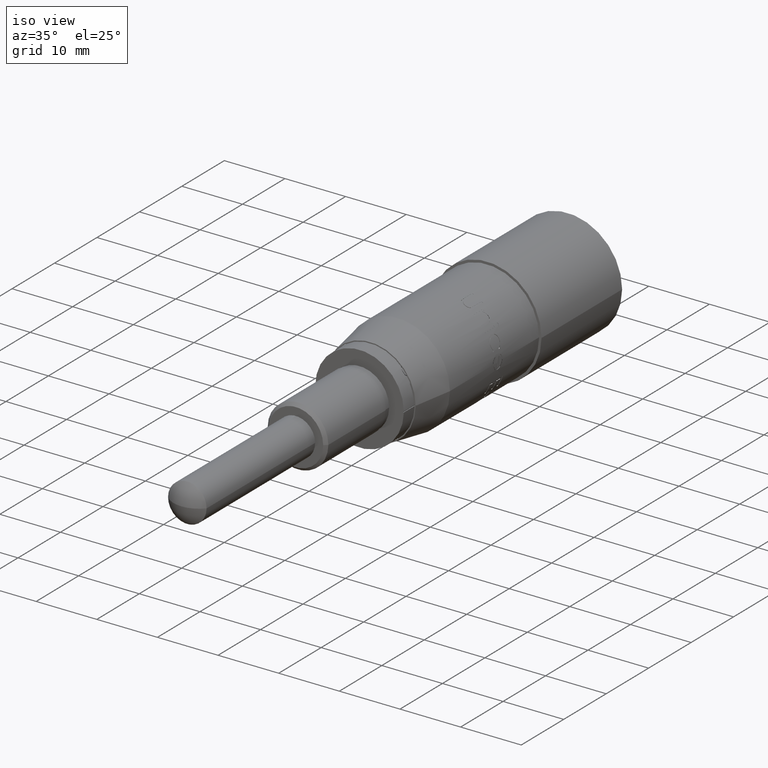
[diagram: clean part render]
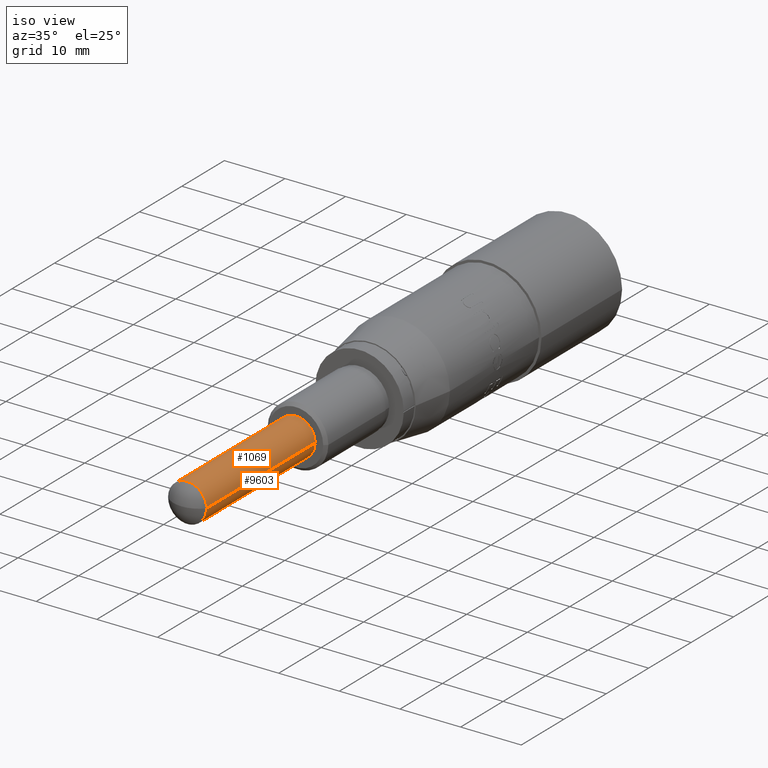
[diagram: same view with one multi-face feature highlighted, each face labeled with its STEP entity id]
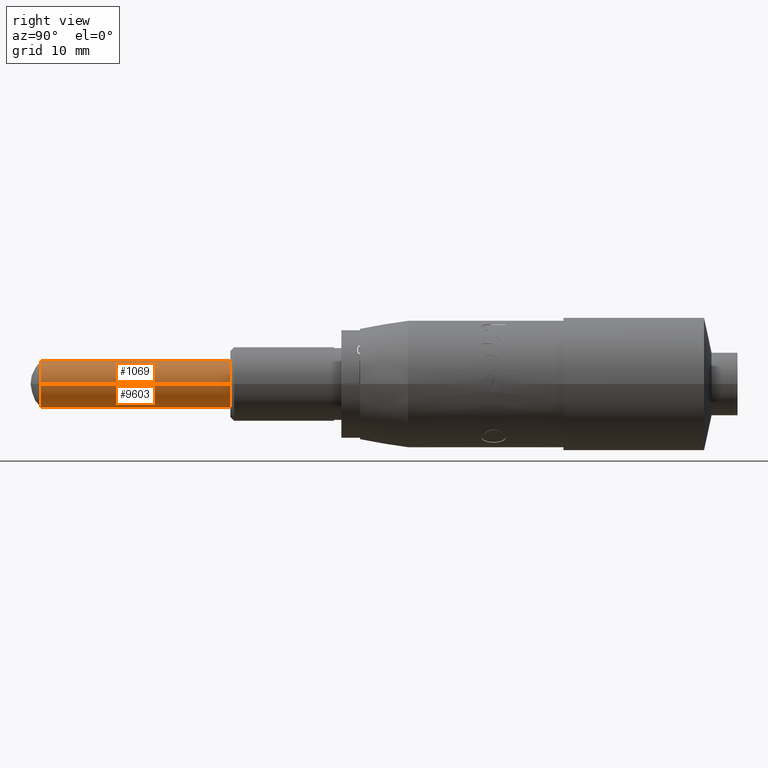
[diagram: same view with one multi-face feature highlighted, each face labeled with its STEP entity id]
A machine part, iso view. The highlighted faces form ONE feature: a constant-radius fillet chain: 2 tangent blend faces with common blend radius 3.175 mm. The faces share edges in the B-rep.
A second angle (right view) of the same feature is appended — it is thin or edge-on in the first view.
Their STEP definitions:
[1] entity #9603 (Cylinder):
#65 = CARTESIAN_POINT ( 'NONE',  ( 31.44783534030351600, 78.38825013362102800, 23.47757420670093300 ) ) ;
#127 = CARTESIAN_POINT ( 'NONE',  ( 34.62283534030351700, -20.74564867639476200, 23.47757420670093300 ) ) ;
#243 = DIRECTION ( 'NONE',  ( -8.879541407035451100E-017, 1.000000000000000000, -0.0000000000000000000 ) ) ;
#256 = ORIENTED_EDGE ( 'NONE', *, *, #8437, .T. ) ;
#1492 = VECTOR ( 'NONE', #243, 1000.000000000000000 ) ;
#1598 = ORIENTED_EDGE ( 'NONE', *, *, #3021, .F. ) ;
#1911 = VERTEX_POINT ( 'NONE', #10468 ) ;
#2626 = CARTESIAN_POINT ( 'NONE',  ( 28.27283534030351900, 78.38825013362102800, 23.47757420670093300 ) ) ;
#3007 = EDGE_CURVE ( 'NONE', #5429, #8070, #3200, .T. ) ;
#3021 = EDGE_CURVE ( 'NONE', #1911, #5429, #7364, .T. ) ;
#3023 = FACE_OUTER_BOUND ( 'NONE', #3051, .T. ) ;
#3051 = EDGE_LOOP ( 'NONE', ( #9254, #1598, #8279, #256 ) ) ;
#3200 = LINE ( 'NONE', #4410, #1492 ) ;
#3429 = DIRECTION ( 'NONE',  ( 1.058937486943297600E-016, -1.000000000000000000, 0.0000000000000000000 ) ) ;
#3499 = DIRECTION ( 'NONE',  ( -8.879541407035451100E-017, 1.000000000000000000, -0.0000000000000000000 ) ) ;
#3609 = DIRECTION ( 'NONE',  ( 8.879541407035449900E-017, -1.000000000000000000, -0.0000000000000000000 ) ) ;
#4403 = AXIS2_PLACEMENT_3D ( 'NONE', #8583, #3609, #9426 ) ;
#4410 = CARTESIAN_POINT ( 'NONE',  ( 34.62283534030351000, 78.38825013362102800, 23.47757420670093300 ) ) ;
#4846 = AXIS2_PLACEMENT_3D ( 'NONE', #8418, #3429, #9252 ) ;
#5007 = EDGE_CURVE ( 'NONE', #1911, #9976, #8011, .T. ) ;
#5429 = VERTEX_POINT ( 'NONE', #127 ) ;
#5495 = CARTESIAN_POINT ( 'NONE',  ( 34.62283534030350300, 52.32957255388083700, 23.47757420670093300 ) ) ;
#5787 = VECTOR ( 'NONE', #3499, 1000.000000000000000 ) ;
#6752 = CARTESIAN_POINT ( 'NONE',  ( 28.27283534030352300, 52.32957255388083700, 23.47757420670093300 ) ) ;
#7094 = CIRCLE ( 'NONE', #4846, 3.174999999999990500 ) ;
#7364 = CIRCLE ( 'NONE', #4403, 3.174999999999997200 ) ;
#8011 = LINE ( 'NONE', #2626, #5787 ) ;
#8070 = VERTEX_POINT ( 'NONE', #5495 ) ;
#8279 = ORIENTED_EDGE ( 'NONE', *, *, #5007, .T. ) ;
#8396 = CYLINDRICAL_SURFACE ( 'NONE', #9587, 3.174999999999997200 ) ;
#8418 = CARTESIAN_POINT ( 'NONE',  ( 31.44783534030351600, 52.32957255388083700, 23.47757420670093300 ) ) ;
#8437 = EDGE_CURVE ( 'NONE', #9976, #8070, #7094, .T. ) ;
#8583 = CARTESIAN_POINT ( 'NONE',  ( 31.44783534030352400, -20.74564867639476200, 23.47757420670093300 ) ) ;
#9247 = DIRECTION ( 'NONE',  ( -1.000000000000000000, 0.0000000000000000000, 0.0000000000000000000 ) ) ;
#9252 = DIRECTION ( 'NONE',  ( 1.000000000000000000, 0.0000000000000000000, 0.0000000000000000000 ) ) ;
#9254 = ORIENTED_EDGE ( 'NONE', *, *, #3007, .F. ) ;
#9426 = DIRECTION ( 'NONE',  ( 1.000000000000000000, 0.0000000000000000000, 0.0000000000000000000 ) ) ;
#9587 = AXIS2_PLACEMENT_3D ( 'NONE', #65, #10057, #9247 ) ;
#9603 = ADVANCED_FACE ( 'NONE', ( #3023 ), #8396, .T. ) ;
#9976 = VERTEX_POINT ( 'NONE', #6752 ) ;
#10057 = DIRECTION ( 'NONE',  ( -8.879541407035451100E-017, 1.000000000000000000, -0.0000000000000000000 ) ) ;
#10468 = CARTESIAN_POINT ( 'NONE',  ( 28.27283534030351900, -20.74564867639476200, 23.47757420670093300 ) ) ;
[2] entity #1069 (Cylinder):
#127 = CARTESIAN_POINT ( 'NONE',  ( 34.62283534030351700, -20.74564867639476200, 23.47757420670093300 ) ) ;
#149 = ORIENTED_EDGE ( 'NONE', *, *, #3007, .T. ) ;
#221 = DIRECTION ( 'NONE',  ( -8.879541407035451100E-017, 1.000000000000000000, -0.0000000000000000000 ) ) ;
#243 = DIRECTION ( 'NONE',  ( -8.879541407035451100E-017, 1.000000000000000000, -0.0000000000000000000 ) ) ;
#299 = CYLINDRICAL_SURFACE ( 'NONE', #6831, 3.174999999999997200 ) ;
#1069 = ADVANCED_FACE ( 'NONE', ( #3283 ), #299, .T. ) ;
#1074 = DIRECTION ( 'NONE',  ( -1.000000000000000000, 0.0000000000000000000, 0.0000000000000000000 ) ) ;
#1275 = EDGE_CURVE ( 'NONE', #8070, #9976, #7727, .T. ) ;
#1492 = VECTOR ( 'NONE', #243, 1000.000000000000000 ) ;
#1702 = CARTESIAN_POINT ( 'NONE',  ( 31.44783534030351600, 52.32957255388083700, 23.47757420670093300 ) ) ;
#1869 = CARTESIAN_POINT ( 'NONE',  ( 31.44783534030351600, 78.38825013362102800, 23.47757420670093300 ) ) ;
#1911 = VERTEX_POINT ( 'NONE', #10468 ) ;
#1985 = EDGE_LOOP ( 'NONE', ( #5045, #149, #7957, #8202 ) ) ;
#2536 = DIRECTION ( 'NONE',  ( 1.000000000000000000, 0.0000000000000000000, 0.0000000000000000000 ) ) ;
#2623 = DIRECTION ( 'NONE',  ( 8.879541407035449900E-017, -1.000000000000000000, -0.0000000000000000000 ) ) ;
#2626 = CARTESIAN_POINT ( 'NONE',  ( 28.27283534030351900, 78.38825013362102800, 23.47757420670093300 ) ) ;
#3007 = EDGE_CURVE ( 'NONE', #5429, #8070, #3200, .T. ) ;
#3200 = LINE ( 'NONE', #4410, #1492 ) ;
#3283 = FACE_OUTER_BOUND ( 'NONE', #1985, .T. ) ;
#3499 = DIRECTION ( 'NONE',  ( -8.879541407035451100E-017, 1.000000000000000000, -0.0000000000000000000 ) ) ;
#4410 = CARTESIAN_POINT ( 'NONE',  ( 34.62283534030351000, 78.38825013362102800, 23.47757420670093300 ) ) ;
#5007 = EDGE_CURVE ( 'NONE', #1911, #9976, #8011, .T. ) ;
#5045 = ORIENTED_EDGE ( 'NONE', *, *, #7272, .F. ) ;
#5429 = VERTEX_POINT ( 'NONE', #127 ) ;
#5495 = CARTESIAN_POINT ( 'NONE',  ( 34.62283534030350300, 52.32957255388083700, 23.47757420670093300 ) ) ;
#5787 = VECTOR ( 'NONE', #3499, 1000.000000000000000 ) ;
#6752 = CARTESIAN_POINT ( 'NONE',  ( 28.27283534030352300, 52.32957255388083700, 23.47757420670093300 ) ) ;
#6831 = AXIS2_PLACEMENT_3D ( 'NONE', #1869, #221, #1074 ) ;
#7113 = CIRCLE ( 'NONE', #7114, 3.174999999999997200 ) ;
#7114 = AXIS2_PLACEMENT_3D ( 'NONE', #7634, #2623, #8476 ) ;
#7272 = EDGE_CURVE ( 'NONE', #5429, #1911, #7113, .T. ) ;
#7549 = DIRECTION ( 'NONE',  ( 1.058937486943297600E-016, -1.000000000000000000, 0.0000000000000000000 ) ) ;
#7634 = CARTESIAN_POINT ( 'NONE',  ( 31.44783534030352400, -20.74564867639476200, 23.47757420670093300 ) ) ;
#7727 = CIRCLE ( 'NONE', #9421, 3.174999999999990500 ) ;
#7957 = ORIENTED_EDGE ( 'NONE', *, *, #1275, .T. ) ;
#8011 = LINE ( 'NONE', #2626, #5787 ) ;
#8070 = VERTEX_POINT ( 'NONE', #5495 ) ;
#8202 = ORIENTED_EDGE ( 'NONE', *, *, #5007, .F. ) ;
#8476 = DIRECTION ( 'NONE',  ( 1.000000000000000000, 0.0000000000000000000, 0.0000000000000000000 ) ) ;
#9421 = AXIS2_PLACEMENT_3D ( 'NONE', #1702, #7549, #2536 ) ;
#9976 = VERTEX_POINT ( 'NONE', #6752 ) ;
#10468 = CARTESIAN_POINT ( 'NONE',  ( 28.27283534030351900, -20.74564867639476200, 23.47757420670093300 ) ) ;